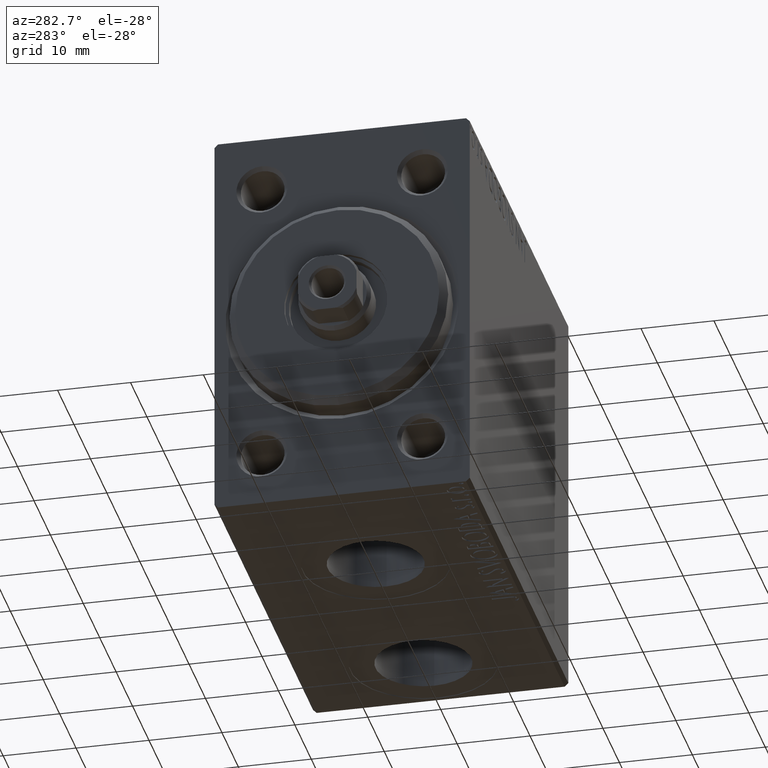
[diagram: clean part render]
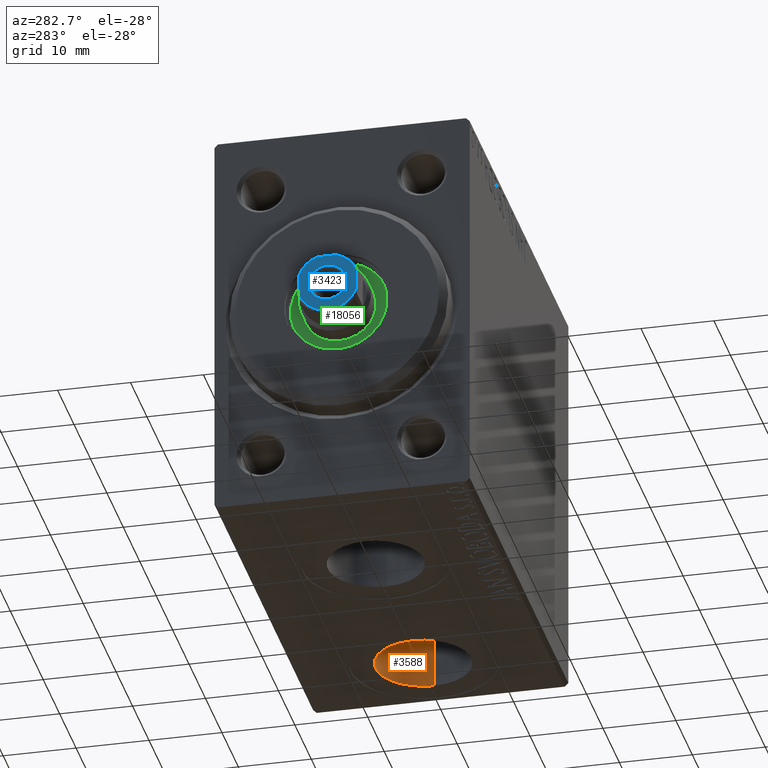
[diagram: same view with three faces highlighted in distinct colors, each labeled with its STEP entity id]
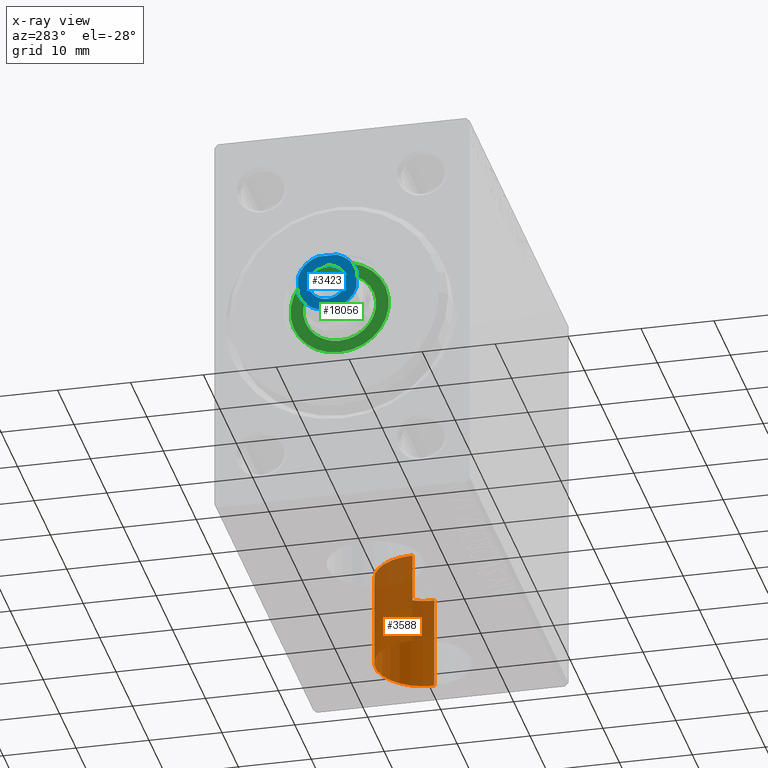
[diagram: x-ray of the same camera — body ghosted, the three highlighted faces saturated]
A machine part, auxiliary view with three faces highlighted in distinct colors.
The next image is the same camera in x-ray (body ghosted, the three faces saturated) — at least one of them is partly hidden behind the body in this view.
Their STEP definitions:

[orange] entity #3588 — the highlighted cylindrical surface (partial cylindrical patch) has radius 6.58 mm, axis along (-0, -0, -1).
#1035 = VERTEX_POINT ( 'NONE', #29531 ) ;
#2526 = AXIS2_PLACEMENT_3D ( 'NONE', #27694, #42199, #7219 ) ;
#2906 = CYLINDRICAL_SURFACE ( 'NONE', #28096, 6.580000000000002736 ) ;
#3588 = ADVANCED_FACE ( 'NONE', ( #37906 ), #2906, .F. ) ;
#4425 = VERTEX_POINT ( 'NONE', #18108 ) ;
#5466 = CIRCLE ( 'NONE', #2526, 6.580000000000002736 ) ;
#7219 = DIRECTION ( 'NONE',  ( -1.000000000000000000, 0.000000000000000000, 0.000000000000000000 ) ) ;
#7229 = ORIENTED_EDGE ( 'NONE', *, *, #37240, .T. ) ;
#8876 = AXIS2_PLACEMENT_3D ( 'NONE', #44120, #16281, #23168 ) ;
#12811 = CARTESIAN_POINT ( 'NONE',  ( 56.07999999999999829, -8.859070343746110859E-15, -14.50000000000000711 ) ) ;
#13026 = EDGE_CURVE ( 'NONE', #25532, #4425, #23117, .T. ) ;
#13214 = EDGE_CURVE ( 'NONE', #19522, #25532, #5466, .T. ) ;
#14319 = EDGE_CURVE ( 'NONE', #19522, #1035, #41039, .T. ) ;
#16281 = DIRECTION ( 'NONE',  ( 0.000000000000000000, 0.000000000000000000, -1.000000000000000000 ) ) ;
#16297 = DIRECTION ( 'NONE',  ( -0.000000000000000000, -0.000000000000000000, -1.000000000000000000 ) ) ;
#16678 = DIRECTION ( 'NONE',  ( -0.000000000000000000, -0.000000000000000000, -1.000000000000000000 ) ) ;
#18108 = CARTESIAN_POINT ( 'NONE',  ( 56.07999999999999829, -8.859070343746110859E-15, -27.40000000000000924 ) ) ;
#19522 = VERTEX_POINT ( 'NONE', #38112 ) ;
#22840 = CIRCLE ( 'NONE', #8876, 6.580000000000002736 ) ;
#23117 = LINE ( 'NONE', #23343, #27527 ) ;
#23168 = DIRECTION ( 'NONE',  ( -1.000000000000000000, 0.000000000000000000, 0.000000000000000000 ) ) ;
#23343 = CARTESIAN_POINT ( 'NONE',  ( 56.07999999999999829, -8.859070343746110859E-15, -14.50000000000000711 ) ) ;
#23407 = ORIENTED_EDGE ( 'NONE', *, *, #13026, .F. ) ;
#25532 = VERTEX_POINT ( 'NONE', #12811 ) ;
#25635 = ORIENTED_EDGE ( 'NONE', *, *, #14319, .T. ) ;
#27527 = VECTOR ( 'NONE', #16678, 1000.000000000000000 ) ;
#27694 = CARTESIAN_POINT ( 'NONE',  ( 49.49999999999999289, -9.664887937585069901E-15, -14.50000000000000711 ) ) ;
#28096 = AXIS2_PLACEMENT_3D ( 'NONE', #30309, #16297, #44365 ) ;
#29107 = ORIENTED_EDGE ( 'NONE', *, *, #13214, .F. ) ;
#29531 = CARTESIAN_POINT ( 'NONE',  ( 42.91999999999999460, -9.664887937585069901E-15, -27.40000000000000924 ) ) ;
#30309 = CARTESIAN_POINT ( 'NONE',  ( 49.49999999999999289, -9.664887937585069901E-15, -14.50000000000000711 ) ) ;
#37213 = EDGE_LOOP ( 'NONE', ( #23407, #29107, #25635, #7229 ) ) ;
#37240 = EDGE_CURVE ( 'NONE', #1035, #4425, #22840, .T. ) ;
#37814 = CARTESIAN_POINT ( 'NONE',  ( 42.91999999999999460, -9.664887937585069901E-15, -14.50000000000000711 ) ) ;
#37906 = FACE_OUTER_BOUND ( 'NONE', #37213, .T. ) ;
#38032 = DIRECTION ( 'NONE',  ( -0.000000000000000000, -0.000000000000000000, -1.000000000000000000 ) ) ;
#38112 = CARTESIAN_POINT ( 'NONE',  ( 42.91999999999999460, -9.664887937585069901E-15, -14.50000000000000711 ) ) ;
#41039 = LINE ( 'NONE', #37814, #42342 ) ;
#42199 = DIRECTION ( 'NONE',  ( 0.000000000000000000, 0.000000000000000000, -1.000000000000000000 ) ) ;
#42342 = VECTOR ( 'NONE', #38032, 1000.000000000000000 ) ;
#44120 = CARTESIAN_POINT ( 'NONE',  ( 49.49999999999999289, -9.664887937585069901E-15, -27.40000000000000924 ) ) ;
#44365 = DIRECTION ( 'NONE',  ( -1.000000000000000000, 0.000000000000000000, 0.000000000000000000 ) ) ;

[blue] entity #3423 — the highlighted planar face has unit normal (-1, 0, 0).
#376 = VERTEX_POINT ( 'NONE', #6716 ) ;
#1075 = DIRECTION ( 'NONE',  ( 1.000000000000000000, 0.000000000000000000, 0.000000000000000000 ) ) ;
#1548 = CARTESIAN_POINT ( 'NONE',  ( -3.999999999999999112, 3.999999999999998224, 64.00000000000000000 ) ) ;
#1928 = ORIENTED_EDGE ( 'NONE', *, *, #16365, .T. ) ;
#2353 = CARTESIAN_POINT ( 'NONE',  ( 0.000000000000000000, 0.000000000000000000, 64.00000000000000000 ) ) ;
#2873 = CARTESIAN_POINT ( 'NONE',  ( 1.280624847486528939, 3.999999999999999112, 64.00000000000000000 ) ) ;
#3423 = ADVANCED_FACE ( 'NONE', ( #21373, #3882 ), #24358, .T. ) ;
#3882 = FACE_OUTER_BOUND ( 'NONE', #45360, .T. ) ;
#4843 = CARTESIAN_POINT ( 'NONE',  ( 0.000000000000000000, 0.000000000000000000, 64.00000000000000000 ) ) ;
#5415 = VERTEX_POINT ( 'NONE', #37882 ) ;
#5679 = DIRECTION ( 'NONE',  ( -1.000000000000000000, -1.084202172485504434E-16, -0.000000000000000000 ) ) ;
#6197 = ORIENTED_EDGE ( 'NONE', *, *, #28630, .T. ) ;
#6716 = CARTESIAN_POINT ( 'NONE',  ( 4.000000000000000888, 1.280624847486521611, 64.00000000000000000 ) ) ;
#6743 = AXIS2_PLACEMENT_3D ( 'NONE', #25045, #17937, #10806 ) ;
#7591 = LINE ( 'NONE', #11044, #33777 ) ;
#8394 = DIRECTION ( 'NONE',  ( -0.000000000000000000, 0.000000000000000000, 1.000000000000000000 ) ) ;
#9528 = DIRECTION ( 'NONE',  ( 0.000000000000000000, -0.000000000000000000, -1.000000000000000000 ) ) ;
#10335 = CARTESIAN_POINT ( 'NONE',  ( -3.999999999999999112, -1.280624847486601103, 64.00000000000000000 ) ) ;
#10712 = CARTESIAN_POINT ( 'NONE',  ( 0.000000000000000000, 0.000000000000000000, 64.00000000000000000 ) ) ;
#10806 = DIRECTION ( 'NONE',  ( 1.000000000000000000, 0.000000000000000000, 0.000000000000000000 ) ) ;
#11044 = CARTESIAN_POINT ( 'NONE',  ( -3.999999999999999112, 3.999999999999998224, 64.00000000000000000 ) ) ;
#12337 = EDGE_CURVE ( 'NONE', #15934, #5415, #38503, .T. ) ;
#12801 = AXIS2_PLACEMENT_3D ( 'NONE', #30690, #9528, #12993 ) ;
#12993 = DIRECTION ( 'NONE',  ( 1.000000000000000000, 0.000000000000000000, 0.000000000000000000 ) ) ;
#13342 = DIRECTION ( 'NONE',  ( 1.000000000000000000, 0.000000000000000000, 0.000000000000000000 ) ) ;
#14162 = DIRECTION ( 'NONE',  ( 1.000000000000000000, 0.000000000000000000, 0.000000000000000000 ) ) ;
#14822 = CIRCLE ( 'NONE', #44197, 4.199999999999985967 ) ;
#15194 = VERTEX_POINT ( 'NONE', #20664 ) ;
#15934 = VERTEX_POINT ( 'NONE', #34252 ) ;
#16102 = ORIENTED_EDGE ( 'NONE', *, *, #19458, .T. ) ;
#16204 = EDGE_CURVE ( 'NONE', #31104, #376, #37277, .T. ) ;
#16365 = EDGE_CURVE ( 'NONE', #5415, #15934, #33526, .T. ) ;
#16714 = VECTOR ( 'NONE', #5679, 1000.000000000000000 ) ;
#17078 = ORIENTED_EDGE ( 'NONE', *, *, #17797, .T. ) ;
#17267 = ORIENTED_EDGE ( 'NONE', *, *, #35301, .T. ) ;
#17589 = CIRCLE ( 'NONE', #19792, 4.199999999999986855 ) ;
#17797 = EDGE_CURVE ( 'NONE', #23312, #32257, #28362, .T. ) ;
#17937 = DIRECTION ( 'NONE',  ( -0.000000000000000000, 0.000000000000000000, 1.000000000000000000 ) ) ;
#19364 = ORIENTED_EDGE ( 'NONE', *, *, #39433, .T. ) ;
#19458 = EDGE_CURVE ( 'NONE', #37881, #22738, #29848, .T. ) ;
#19790 = CARTESIAN_POINT ( 'NONE',  ( 4.000000000000000888, 3.999999999999999112, 64.00000000000000000 ) ) ;
#19792 = AXIS2_PLACEMENT_3D ( 'NONE', #4843, #40290, #22344 ) ;
#20294 = AXIS2_PLACEMENT_3D ( 'NONE', #31724, #45311, #13342 ) ;
#20316 = DIRECTION ( 'NONE',  ( 1.000000000000000000, 0.000000000000000000, 0.000000000000000000 ) ) ;
#20664 = CARTESIAN_POINT ( 'NONE',  ( -3.999999999999999112, 1.280624847486528939, 64.00000000000000000 ) ) ;
#21373 = FACE_BOUND ( 'NONE', #26188, .T. ) ;
#21421 = AXIS2_PLACEMENT_3D ( 'NONE', #39919, #8394, #22429 ) ;
#22189 = DIRECTION ( 'NONE',  ( -0.000000000000000000, 0.000000000000000000, 1.000000000000000000 ) ) ;
#22344 = DIRECTION ( 'NONE',  ( 1.000000000000000000, 0.000000000000000000, 0.000000000000000000 ) ) ;
#22429 = DIRECTION ( 'NONE',  ( 1.000000000000000000, 0.000000000000000000, 0.000000000000000000 ) ) ;
#22738 = VERTEX_POINT ( 'NONE', #44473 ) ;
#22813 = ORIENTED_EDGE ( 'NONE', *, *, #31580, .T. ) ;
#23015 = DIRECTION ( 'NONE',  ( -1.084202172485504434E-16, 1.000000000000000000, -0.000000000000000000 ) ) ;
#23061 = ORIENTED_EDGE ( 'NONE', *, *, #12337, .T. ) ;
#23312 = VERTEX_POINT ( 'NONE', #10335 ) ;
#23727 = CARTESIAN_POINT ( 'NONE',  ( -1.280624847486591555, -4.000000000000001776, 64.00000000000000000 ) ) ;
#24358 = PLANE ( 'NONE',  #6743 ) ;
#25045 = CARTESIAN_POINT ( 'NONE',  ( 0.000000000000000000, 0.000000000000000000, 64.00000000000000000 ) ) ;
#26188 = EDGE_LOOP ( 'NONE', ( #23061, #1928 ) ) ;
#28362 = CIRCLE ( 'NONE', #29138, 4.200000000000008171 ) ;
#28630 = EDGE_CURVE ( 'NONE', #22738, #15194, #17589, .T. ) ;
#28666 = CARTESIAN_POINT ( 'NONE',  ( 1.280624847486517393, -4.000000000000001776, 64.00000000000000000 ) ) ;
#29042 = VERTEX_POINT ( 'NONE', #28666 ) ;
#29138 = AXIS2_PLACEMENT_3D ( 'NONE', #2353, #41249, #20316 ) ;
#29848 = LINE ( 'NONE', #1548, #16714 ) ;
#30118 = VECTOR ( 'NONE', #1075, 1000.000000000000000 ) ;
#30413 = EDGE_CURVE ( 'NONE', #15194, #23312, #7591, .T. ) ;
#30690 = CARTESIAN_POINT ( 'NONE',  ( 0.000000000000000000, 0.000000000000000000, 64.00000000000000000 ) ) ;
#31104 = VERTEX_POINT ( 'NONE', #33462 ) ;
#31283 = VECTOR ( 'NONE', #23015, 1000.000000000000000 ) ;
#31580 = EDGE_CURVE ( 'NONE', #32257, #29042, #39736, .T. ) ;
#31724 = CARTESIAN_POINT ( 'NONE',  ( 0.000000000000000000, 0.000000000000000000, 64.00000000000000000 ) ) ;
#32257 = VERTEX_POINT ( 'NONE', #23727 ) ;
#33064 = CARTESIAN_POINT ( 'NONE',  ( -3.999999999999998224, -4.000000000000001776, 64.00000000000000000 ) ) ;
#33462 = CARTESIAN_POINT ( 'NONE',  ( 4.000000000000001776, -1.280624847486520279, 64.00000000000000000 ) ) ;
#33526 = CIRCLE ( 'NONE', #20294, 2.550000000000010481 ) ;
#33777 = VECTOR ( 'NONE', #35655, 1000.000000000000000 ) ;
#34252 = CARTESIAN_POINT ( 'NONE',  ( 2.550000000000010481, 0.000000000000000000, 64.00000000000000000 ) ) ;
#35301 = EDGE_CURVE ( 'NONE', #29042, #31104, #14822, .T. ) ;
#35655 = DIRECTION ( 'NONE',  ( 1.084202172485504434E-16, -1.000000000000000000, 0.000000000000000000 ) ) ;
#35678 = ORIENTED_EDGE ( 'NONE', *, *, #16204, .T. ) ;
#37277 = LINE ( 'NONE', #19790, #31283 ) ;
#37881 = VERTEX_POINT ( 'NONE', #2873 ) ;
#37882 = CARTESIAN_POINT ( 'NONE',  ( -2.550000000000010481, 3.122849337825763731E-16, 64.00000000000000000 ) ) ;
#38503 = CIRCLE ( 'NONE', #12801, 2.550000000000010481 ) ;
#39433 = EDGE_CURVE ( 'NONE', #376, #37881, #41261, .T. ) ;
#39736 = LINE ( 'NONE', #33064, #30118 ) ;
#39919 = CARTESIAN_POINT ( 'NONE',  ( 0.000000000000000000, 0.000000000000000000, 64.00000000000000000 ) ) ;
#40290 = DIRECTION ( 'NONE',  ( -0.000000000000000000, 0.000000000000000000, 1.000000000000000000 ) ) ;
#41249 = DIRECTION ( 'NONE',  ( -0.000000000000000000, 0.000000000000000000, 1.000000000000000000 ) ) ;
#41261 = CIRCLE ( 'NONE', #21421, 4.199999999999985967 ) ;
#44197 = AXIS2_PLACEMENT_3D ( 'NONE', #10712, #22189, #14162 ) ;
#44473 = CARTESIAN_POINT ( 'NONE',  ( -1.280624847486532270, 3.999999999999998224, 64.00000000000000000 ) ) ;
#44863 = ORIENTED_EDGE ( 'NONE', *, *, #30413, .T. ) ;
#45311 = DIRECTION ( 'NONE',  ( 0.000000000000000000, -0.000000000000000000, -1.000000000000000000 ) ) ;
#45360 = EDGE_LOOP ( 'NONE', ( #35678, #19364, #16102, #6197, #44863, #17078, #22813, #17267 ) ) ;

[green] entity #18056 — the highlighted planar face has unit normal (-1, 0, 0).
#2294 = CARTESIAN_POINT ( 'NONE',  ( 1.500000000000000000, 0.000000000000000000, 0.000000000000000000 ) ) ;
#4878 = CARTESIAN_POINT ( 'NONE',  ( 1.499999999999999556, 6.123233995736765296E-16, 5.000000000000000000 ) ) ;
#6210 = DIRECTION ( 'NONE',  ( 0.000000000000000000, 0.000000000000000000, -1.000000000000000000 ) ) ;
#7282 = ORIENTED_EDGE ( 'NONE', *, *, #26113, .F. ) ;
#7474 = DIRECTION ( 'NONE',  ( 0.000000000000000000, 0.000000000000000000, -1.000000000000000000 ) ) ;
#8449 = CARTESIAN_POINT ( 'NONE',  ( 1.499999999999999556, 0.000000000000000000, 0.000000000000000000 ) ) ;
#8747 = VERTEX_POINT ( 'NONE', #15241 ) ;
#10695 = EDGE_CURVE ( 'NONE', #44949, #16973, #41437, .T. ) ;
#11345 = VERTEX_POINT ( 'NONE', #4878 ) ;
#12469 = CARTESIAN_POINT ( 'NONE',  ( 1.499999999999999556, 0.000000000000000000, 0.000000000000000000 ) ) ;
#12696 = EDGE_LOOP ( 'NONE', ( #25477, #22106 ) ) ;
#13130 = AXIS2_PLACEMENT_3D ( 'NONE', #12469, #43302, #22597 ) ;
#14378 = CIRCLE ( 'NONE', #20263, 5.000000000000000000 ) ;
#14573 = CIRCLE ( 'NONE', #13130, 5.000000000000000000 ) ;
#14606 = DIRECTION ( 'NONE',  ( 1.000000000000000000, 0.000000000000000000, 0.000000000000000000 ) ) ;
#15054 = CARTESIAN_POINT ( 'NONE',  ( 1.500000000000000000, 0.000000000000000000, 0.000000000000000000 ) ) ;
#15241 = CARTESIAN_POINT ( 'NONE',  ( 1.499999999999999556, 0.000000000000000000, -5.000000000000000000 ) ) ;
#15499 = CARTESIAN_POINT ( 'NONE',  ( 1.500000000000000000, 0.000000000000000000, 0.000000000000000000 ) ) ;
#16132 = EDGE_CURVE ( 'NONE', #11345, #8747, #14378, .T. ) ;
#16586 = FACE_BOUND ( 'NONE', #20229, .T. ) ;
#16973 = VERTEX_POINT ( 'NONE', #35747 ) ;
#17258 = FACE_OUTER_BOUND ( 'NONE', #12696, .T. ) ;
#18056 = ADVANCED_FACE ( 'NONE', ( #16586, #17258 ), #30603, .T. ) ;
#19040 = DIRECTION ( 'NONE',  ( 1.000000000000000000, 0.000000000000000000, 0.000000000000000000 ) ) ;
#20229 = EDGE_LOOP ( 'NONE', ( #7282, #20267 ) ) ;
#20263 = AXIS2_PLACEMENT_3D ( 'NONE', #8449, #19040, #22485 ) ;
#20267 = ORIENTED_EDGE ( 'NONE', *, *, #16132, .F. ) ;
#21935 = DIRECTION ( 'NONE',  ( 0.000000000000000000, 0.000000000000000000, -1.000000000000000000 ) ) ;
#22106 = ORIENTED_EDGE ( 'NONE', *, *, #24887, .T. ) ;
#22485 = DIRECTION ( 'NONE',  ( 0.000000000000000000, 0.000000000000000000, -1.000000000000000000 ) ) ;
#22597 = DIRECTION ( 'NONE',  ( 0.000000000000000000, 0.000000000000000000, -1.000000000000000000 ) ) ;
#22625 = CIRCLE ( 'NONE', #45414, 6.750000000000000000 ) ;
#23701 = DIRECTION ( 'NONE',  ( 1.000000000000000000, 0.000000000000000000, 0.000000000000000000 ) ) ;
#23986 = AXIS2_PLACEMENT_3D ( 'NONE', #2294, #23701, #6210 ) ;
#24887 = EDGE_CURVE ( 'NONE', #16973, #44949, #22625, .T. ) ;
#25477 = ORIENTED_EDGE ( 'NONE', *, *, #10695, .T. ) ;
#26113 = EDGE_CURVE ( 'NONE', #8747, #11345, #14573, .T. ) ;
#30603 = PLANE ( 'NONE',  #23986 ) ;
#35747 = CARTESIAN_POINT ( 'NONE',  ( 1.500000000000000000, 8.266365894244632361E-16, -6.750000000000000000 ) ) ;
#39423 = DIRECTION ( 'NONE',  ( 1.000000000000000000, 0.000000000000000000, 0.000000000000000000 ) ) ;
#40688 = AXIS2_PLACEMENT_3D ( 'NONE', #15499, #39423, #21935 ) ;
#41437 = CIRCLE ( 'NONE', #40688, 6.750000000000000000 ) ;
#43302 = DIRECTION ( 'NONE',  ( 1.000000000000000000, 0.000000000000000000, 0.000000000000000000 ) ) ;
#44437 = CARTESIAN_POINT ( 'NONE',  ( 1.500000000000000000, 0.000000000000000000, 6.750000000000000000 ) ) ;
#44949 = VERTEX_POINT ( 'NONE', #44437 ) ;
#45414 = AXIS2_PLACEMENT_3D ( 'NONE', #15054, #14606, #7474 ) ;